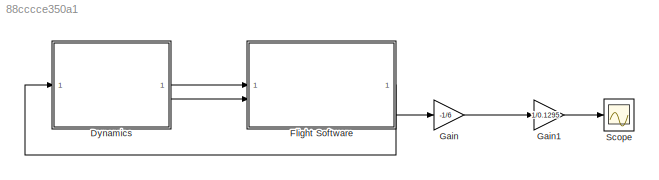
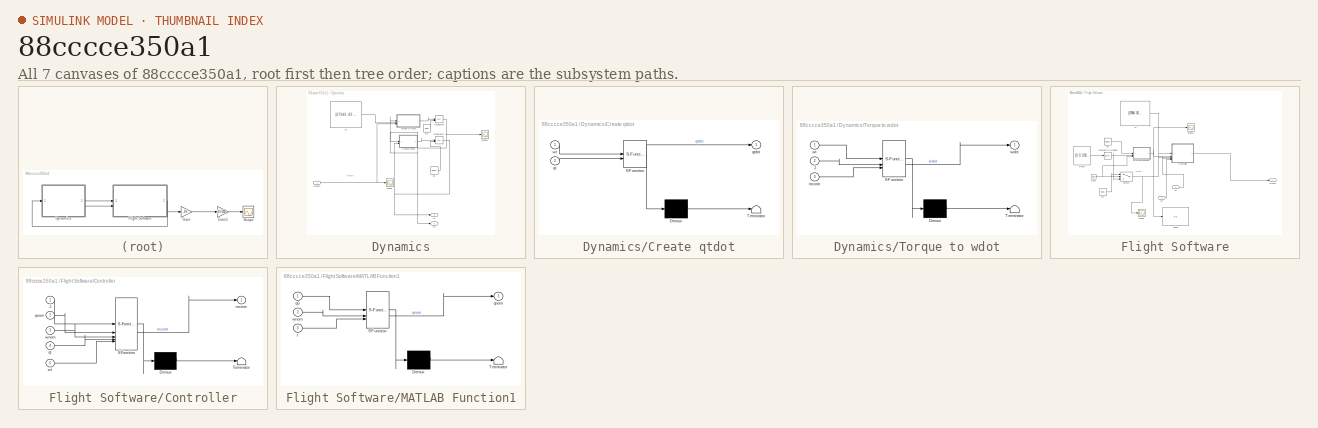
[diagram: thumbnail index - all 7 canvases of the model, root first then tree order]
MODEL slx_88cccce350a1
KIND model
CONFIG AbsTol = auto
CONFIG EnableMultiTasking = off
CONFIG FixedStep = auto
CONFIG MaxStep = auto
CONFIG MinStep = auto
CONFIG RelTol = 1e-3
CONFIG SampleTimeConstraint = Unconstrained
CONFIG SolverName = VariableStepAuto
CONFIG StartTime = 0.0
CONFIG StopTime = 1800
BLOCK [SubSystem] Dynamics
BLOCK [SubSystem] Dynamics/Create qtdot
  ErrorFcn = Stateflow.Translate.translate
  LibrarySourceBlock = simulink/User-Defined\nFunctions/MATLAB Function
  PermitHierarchicalResolution = ExplicitOnly
  SFBlockType = MATLAB Function
  TreatAsAtomicUnit = on
BLOCK [Demux] Dynamics/Create qtdot/ Demux 
  Outputs = 1
BLOCK [S-Function] Dynamics/Create qtdot/ SFunction 
  EnableBusSupport = on
  FunctionName = sf_sfun
  PortCounts = [2 2]
  SFcnIsStateOwnerBlock = off
  SFunctionDeploymentMode = off
  Tag = Stateflow S-Function 4
BLOCK [Terminator] Dynamics/Create qtdot/ Terminator 
BLOCK [Inport] Dynamics/Create qtdot/qt
  Port = 2
BLOCK [Outport] Dynamics/Create qtdot/qtdot
BLOCK [Inport] Dynamics/Create qtdot/wt
BLOCK [Integrator] Dynamics/Integrator
  InitialConditionSource = external
BLOCK [Integrator] Dynamics/Integrator1
  InitialConditionSource = external
BLOCK [Constant] Dynamics/Js
  Value = [67946 -83 11129; -83 90061 103; 11129 103 45821]
BLOCK [Scope] Dynamics/Scope
  Floating = off
  NumInputPorts = 1
  ScopeSpecificationString = Simulink.scopes.TimeScopeBlockCfg('CurrentConfiguration', extmgr.ConfigurationSet(extmgr.Configuration('Core','General UI',true),extmgr.Configuration('Core','Source UI',true),extmgr.Configuration('Sources','WiredSimulink',true),extmgr.Configuration('Visuals','Time Domain',true,'SerializedDisplays',{struct('MinYLimReal','-0.62753','MaxYLimReal','0.8344','YLabelReal','','MinYLimMag','0.00000','MaxYL...<+1346ch>
BLOCK [Scope] Dynamics/Scope1
  Floating = off
  NumInputPorts = 1
  ScopeSpecificationString = Simulink.scopes.TimeScopeBlockCfg('CurrentConfiguration', extmgr.ConfigurationSet(extmgr.Configuration('Core','General UI',true),extmgr.Configuration('Core','Source UI',true),extmgr.Configuration('Sources','WiredSimulink',true),extmgr.Configuration('Visuals','Time Domain',true,'SerializedDisplays',{struct('MinYLimReal','-0.00005','MaxYLimReal','0.00011','YLabelReal','','MinYLimMag','0.00000','MaxY...<+1393ch>
BLOCK [SubSystem] Dynamics/Torque to wdot
  ErrorFcn = Stateflow.Translate.translate
  LibrarySourceBlock = simulink/User-Defined\nFunctions/MATLAB Function
  PermitHierarchicalResolution = ExplicitOnly
  SFBlockType = MATLAB Function
  TreatAsAtomicUnit = on
BLOCK [Demux] Dynamics/Torque to wdot/ Demux 
  Outputs = 1
BLOCK [S-Function] Dynamics/Torque to wdot/ SFunction 
  EnableBusSupport = on
  FunctionName = sf_sfun
  PortCounts = [3 2]
  SFcnIsStateOwnerBlock = off
  SFunctionDeploymentMode = off
  Tag = Stateflow S-Function 3
BLOCK [Terminator] Dynamics/Torque to wdot/ Terminator 
BLOCK [Inport] Dynamics/Torque to wdot/J
  Port = 2
BLOCK [Inport] Dynamics/Torque to wdot/mcontr
  Port = 3
BLOCK [Outport] Dynamics/Torque to wdot/wdot
BLOCK [Inport] Dynamics/Torque to wdot/wt
BLOCK [Inport] Dynamics/mcontr
BLOCK [Constant] Dynamics/q0
  Value = [0; 0; 0; 1]
BLOCK [Outport] Dynamics/qt
BLOCK [Constant] Dynamics/w0
  Value = [0; 0; 0]
BLOCK [Outport] Dynamics/wt
  Port = 2
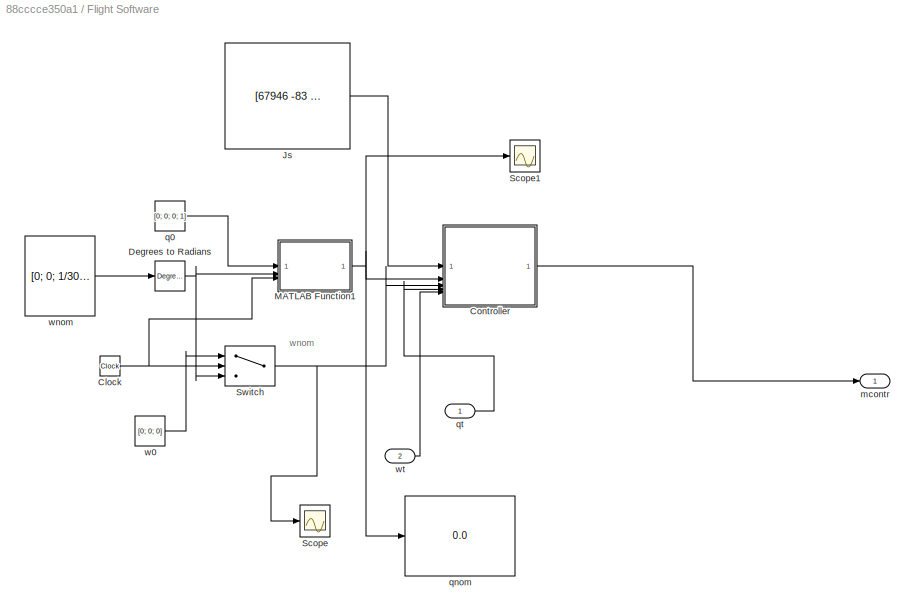
BLOCK [SubSystem] Flight Software
BLOCK [Clock] Flight Software/Clock
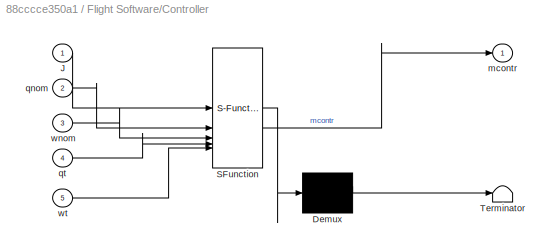
BLOCK [SubSystem] Flight Software/Controller
  ErrorFcn = Stateflow.Translate.translate
  LibrarySourceBlock = simulink/User-Defined\nFunctions/MATLAB Function
  PermitHierarchicalResolution = ExplicitOnly
  SFBlockType = MATLAB Function
  TreatAsAtomicUnit = on
BLOCK [Demux] Flight Software/Controller/ Demux 
  Outputs = 1
BLOCK [S-Function] Flight Software/Controller/ SFunction 
  EnableBusSupport = on
  FunctionName = sf_sfun
  PortCounts = [5 2]
  SFcnIsStateOwnerBlock = off
  SFunctionDeploymentMode = off
  Tag = Stateflow S-Function 2
BLOCK [Terminator] Flight Software/Controller/ Terminator 
BLOCK [Inport] Flight Software/Controller/J
BLOCK [Outport] Flight Software/Controller/mcontr
BLOCK [Inport] Flight Software/Controller/qnom
  Port = 2
BLOCK [Inport] Flight Software/Controller/qt
  Port = 4
BLOCK [Inport] Flight Software/Controller/wnom
  Port = 3
BLOCK [Inport] Flight Software/Controller/wt
  Port = 5
BLOCK [Reference] Flight Software/Degrees to Radians  REF=simulink_extras/Transformations/Degrees to
Radians
  SourceBlock = simulink_extras/Transformations/Degrees to\nRadians
  SourceType = DegreesToRadians
BLOCK [Constant] Flight Software/Js
  Value = [67946 -83 11129; -83 90061 103; 11129 103 45821]
BLOCK [SubSystem] Flight Software/MATLAB Function1
  ErrorFcn = Stateflow.Translate.translate
  LibrarySourceBlock = simulink/User-Defined\nFunctions/MATLAB Function
  PermitHierarchicalResolution = ExplicitOnly
  SFBlockType = MATLAB Function
  TreatAsAtomicUnit = on
BLOCK [Demux] Flight Software/MATLAB Function1/ Demux 
  Outputs = 1
BLOCK [S-Function] Flight Software/MATLAB Function1/ SFunction 
  EnableBusSupport = on
  FunctionName = sf_sfun
  PortCounts = [3 2]
  SFcnIsStateOwnerBlock = off
  SFunctionDeploymentMode = off
  Tag = Stateflow S-Function 1
BLOCK [Terminator] Flight Software/MATLAB Function1/ Terminator 
BLOCK [Inport] Flight Software/MATLAB Function1/q0
BLOCK [Outport] Flight Software/MATLAB Function1/qnom
BLOCK [Inport] Flight Software/MATLAB Function1/t
  Port = 3
BLOCK [Inport] Flight Software/MATLAB Function1/wnom
  Port = 2
BLOCK [Scope] Flight Software/Scope
  Floating = off
  NumInputPorts = 1
  ScopeSpecificationString = Simulink.scopes.TimeScopeBlockCfg('CurrentConfiguration', extmgr.ConfigurationSet(extmgr.Configuration('Core','General UI',true),extmgr.Configuration('Core','Source UI',true),extmgr.Configuration('Sources','WiredSimulink',true),extmgr.Configuration('Visuals','Time Domain',true,'SerializedDisplays',{struct('MinYLimReal','-0.000007','MaxYLimReal','0.000065','YLabelReal','','MinYLimMag','0.000000','M...<+1358ch>
BLOCK [Scope] Flight Software/Scope1
  Floating = off
  NumInputPorts = 1
  ScopeSpecificationString = Simulink.scopes.TimeScopeBlockCfg('CurrentConfiguration', extmgr.ConfigurationSet(extmgr.Configuration('Core','General UI',true),extmgr.Configuration('Core','Source UI',true),extmgr.Configuration('Sources','WiredSimulink',true,'DataLoggingVariableName','ScopeData1'),extmgr.Configuration('Visuals','Time Domain',true,'SerializedDisplays',{struct('MinYLimReal','-0.125','MaxYLimReal','1.125','YLabelRe...<+1454ch>
BLOCK [Switch] Flight Software/Switch
  Criteria = u2 > Threshold
  InputSameDT = off
  SaturateOnIntegerOverflow = off
  Threshold = 900
BLOCK [Outport] Flight Software/mcontr
BLOCK [Constant] Flight Software/q0
  Value = [0; 0; 0; 1]
BLOCK [Display] Flight Software/qnom
  Decimation = 1
BLOCK [Inport] Flight Software/qt
BLOCK [Constant] Flight Software/w0
  Value = [0; 0; 0]
BLOCK [Constant] Flight Software/wnom
  Value = [0; 0; 1/300]
BLOCK [Inport] Flight Software/wt
  Port = 2
BLOCK [Gain] Gain
  Gain = -1/6
BLOCK [Gain] Gain1
  Gain = 1/0.1295
BLOCK [Scope] Scope
  Floating = off
  NumInputPorts = 1
  ScopeSpecificationString = Simulink.scopes.TimeScopeBlockCfg('CurrentConfiguration', extmgr.ConfigurationSet(extmgr.Configuration('Core','General UI',true),extmgr.Configuration('Core','Source UI',true),extmgr.Configuration('Sources','WiredSimulink',true,'DataLoggingVariableName','ScopeData2'),extmgr.Configuration('Visuals','Time Domain',true,'SerializedDisplays',{struct('MinYLimReal','-1.07388','MaxYLimReal','0.80763','YLab...<+1386ch>
ANNOTATION Dynamics: mcontr
ANNOTATION Flight Software: wnom
LINE Dynamics/Create qtdot:1 -> Dynamics/Integrator1:1
NET Dynamics/Integrator1:1 -> Dynamics/Create qtdot:2, Dynamics/qt:1
NET Dynamics/Integrator:1 -> Dynamics/Create qtdot:1, Dynamics/Scope1:1, Dynamics/Torque to wdot:1, Dynamics/wt:1
LINE Dynamics/Js:1 -> Dynamics/Torque to wdot:2
LINE Dynamics/Torque to wdot:1 -> Dynamics/Integrator:1
NET Dynamics/mcontr:1 -> Dynamics/Scope:1, Dynamics/Torque to wdot:3
LINE Dynamics/q0:1 -> Dynamics/Integrator1:2
LINE Dynamics/w0:1 -> Dynamics/Integrator:2
LINE Dynamics:1 -> Flight Software:1
LINE Dynamics:2 -> Flight Software:2
NET Flight Software/Clock:1 -> Flight Software/MATLAB Function1:3, Flight Software/Switch:2
LINE Flight Software/Controller:1 -> Flight Software/mcontr:1
NET Flight Software/Degrees to Radians:1 -> Flight Software/MATLAB Function1:2, Flight Software/Switch:3
LINE Flight Software/Js:1 -> Flight Software/Controller:1
NET Flight Software/MATLAB Function1:1 -> Flight Software/Controller:2, Flight Software/Scope1:1, Flight Software/qnom:1
NET Flight Software/Switch:1 -> Flight Software/Controller:3, Flight Software/Scope:1
LINE Flight Software/q0:1 -> Flight Software/MATLAB Function1:1
LINE Flight Software/qt:1 -> Flight Software/Controller:4
LINE Flight Software/w0:1 -> Flight Software/Switch:1
LINE Flight Software/wnom:1 -> Flight Software/Degrees to Radians:1
LINE Flight Software/wt:1 -> Flight Software/Controller:5
NET Flight Software:1 -> Dynamics:1, Gain:1
LINE Gain1:1 -> Scope:1
LINE Gain:1 -> Gain1:1
note: NET lines group one-source signal fan-out (src -> all destinations, sorted); 1:1 wires keep LINE
CHART Flight Software/MATLAB Function1 states=1 transitions=1
  STATE_LABEL 'eML_blk_kernel()'
  STATE_LABEL 'SCRIPT:\nfunction qnom = fcn(q0,wnom,t)\nif t < 900\n    thetatot = norm(wnom)*t;\nelse\n    thetatot = norm(wnom)*900;\nend\ne = wnom ./ norm(wnom);\n\nqtotv = sin(thetatot/2)*e;\nqtots = cos(thetatot/2);\n\nqtot = [qtotv; qtots];\n\nqnom = qmult(qtot,q0);\n\n\n\nfunction q3 = qmult(q2,q1)\n\nq3 = [q2(4).*q1(1:3) + q1(4).*q2(1:3) - cross(q2(1:3),q1(1:3));\n    q2(4)*q1(4) - dot(q2(1:3),q1(1:3))];\n\n\n'
CHART Flight Software/Controller states=1 transitions=1
  STATE_LABEL 'eML_blk_kernel()'
  STATE_LABEL 'SCRIPT:\nfunction mcontr = fcn(J,qnom,wnom,qt,wt)\n\nqtconj = qt;\nqtconj(1:3) = -qt(1:3);\nqerr = qmult(qnom,qtconj);\n\nerror = (2/qerr(4))*qerr(1:3);\n\nwerr = wnom - wt;\n\nderror = -skewsymmetric(wnom)*error + werr;\n\nKd = 0.1;\nKp = 0.1;\n\nu = Kd*derror + Kp*error;\n\nmcontr = J*u;\n\nend\nfunction q3 = qmult(q2,q1)\n\nq3 = [q2(4).*q1(1:3) + q1(4).*q2(1:3) - cross(q2(1:3),q1(1:3));\n    q2(4)*q1(4) - dot(q2(1:3),...<+173ch>'
CHART Dynamics/Torque to wdot states=1 transitions=1
  STATE_LABEL 'eML_blk_kernel()'
  STATE_LABEL 'SCRIPT:\nfunction wdot = fcn(wt,J,mcontr)\n\nwdot = inv(J)*(mcontr - cross(wt, J*wt));\n\n'
CHART Dynamics/Create qtdot states=1 transitions=1
  STATE_LABEL 'eML_blk_kernel()'
  STATE_LABEL 'SCRIPT:\nfunction qtdot = fcn(wt,qt)\nv1 = zeros(4,1);\nv1(1:3) = wt;\nv1(4) = 0;\nqtdot = qmult(0.5 * v1, qt);\n\n\n\nend\n\n\n\nfunction q3 = qmult(q2,q1)\n\nq3 = [q2(4).*q1(1:3) + q1(4).*q2(1:3) - cross(q2(1:3),q1(1:3));\n    q2(4)*q1(4) - dot(q2(1:3),q1(1:3))];\n\nend\n'
CHART  states=0 transitions=0
CHART  states=0 transitions=0
CHART  states=0 transitions=0
CHART  states=0 transitions=0
